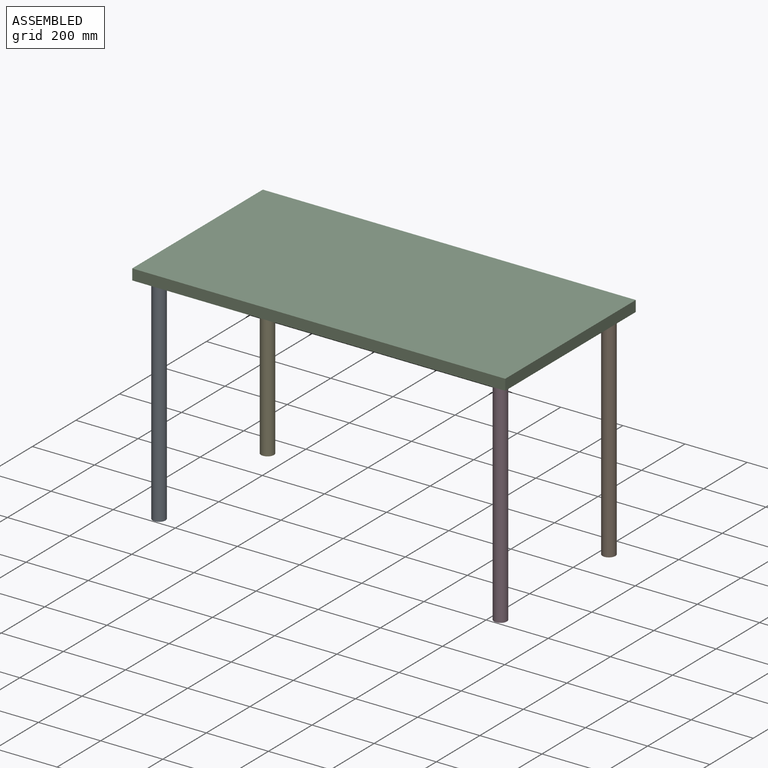
[diagram: assembled view]
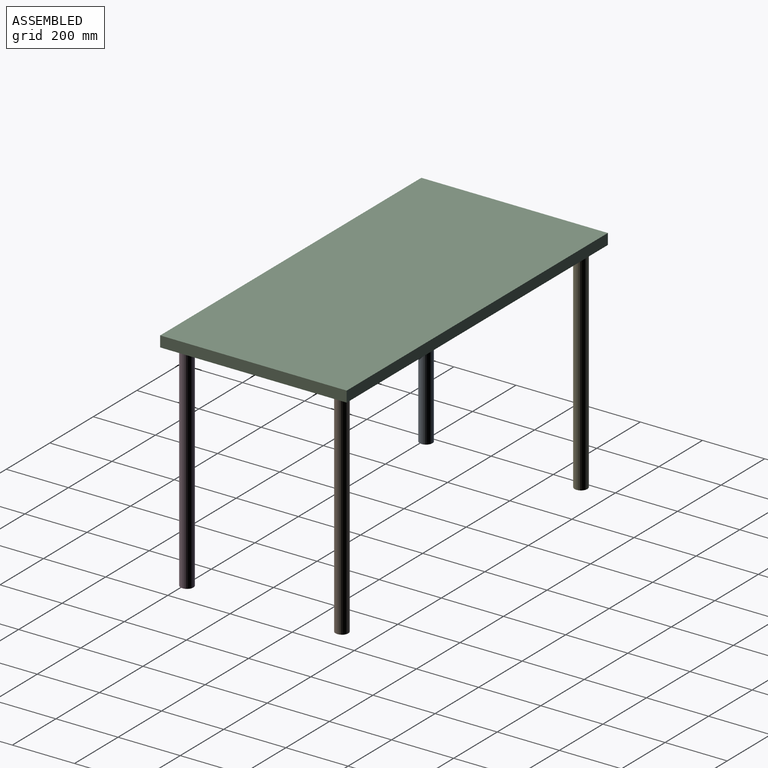
[diagram: assembled view, second angle]
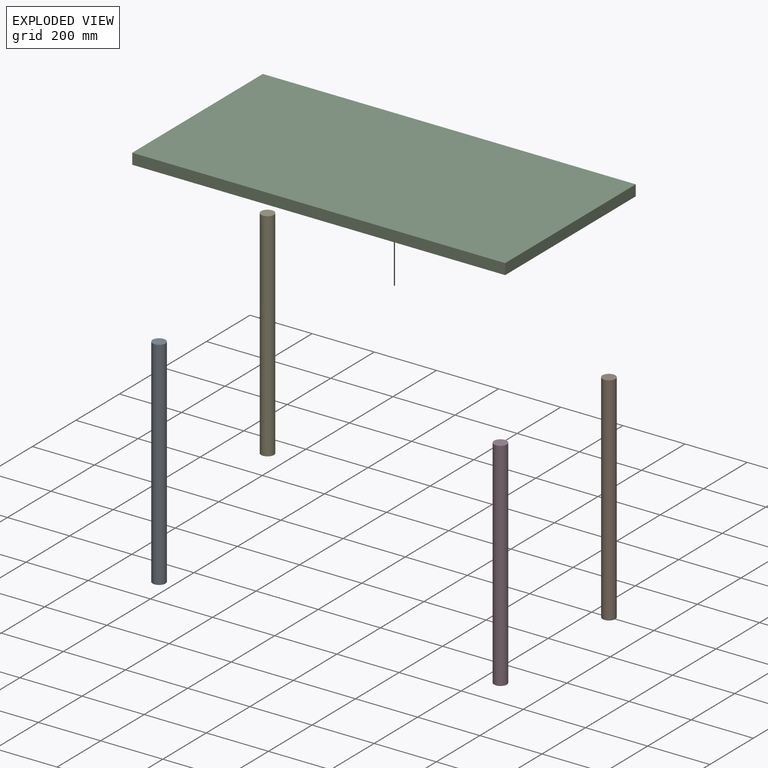
[diagram: exploded view]
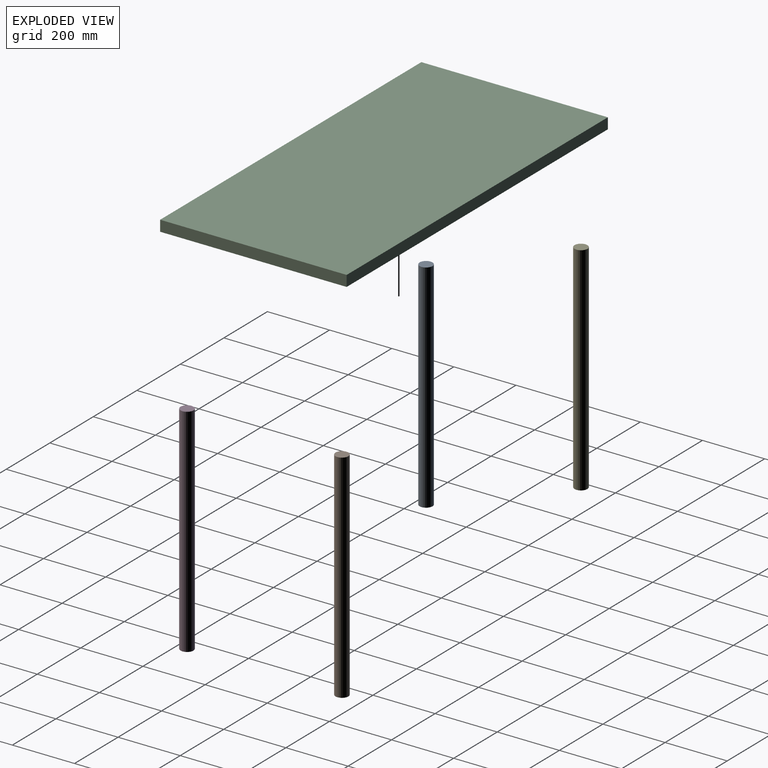
[diagram: exploded view, second angle]
ASSEMBLY  parts=5 mates=8
PART A: 3 faces, bbox 41.3x41.3x698.5 mm
  f0: cylinder r=20.64mm len=698.5mm, axis (0,0,-1), area 90574mm2, adj f1,f2
  f1: plane 41.28x41.28mm, normal (0,0,1), area 1338mm2, adj f0
  f2: plane 41.28x41.28mm, normal (0,0,-1), area 1338mm2, adj f0
PART B: same geometry as A
PART C: 16 faces, bbox 1200.2x600.1x34.9 mm
  f0: plane 1200.15x34.93mm, normal (0,1,0), area 41915.2mm2, adj f1,f3,f4,f5
  f1: plane 600.08x34.93mm, normal (-1,0,0), area 20957.6mm2, adj f0,f2,f4,f5
  f2: plane 1200.15x34.93mm, normal (0,-1,0), area 41915.2mm2, adj f1,f3,f4,f5
  f3: plane 600.08x34.93mm, normal (1,0,0), area 20957.6mm2, adj f0,f2,f4,f5
  f4: plane 1200.15x600.08mm, normal (0,0,1), area 720180mm2, adj f0,f1,f2,f3
  f5: plane 1200.15x600.08mm, normal (0,0,-1), area 719546.6mm2, adj f0,f1,f2,f3,f6,f8,f10,f12
  f6: cylinder r=6.35mm len=25.4mm, axis (0,0,-1), area 1013.4mm2, adj f5,f7
  f7: plane 12.7x12.7mm, normal (0,0,-1), area 126.7mm2, adj f6
  f8: cylinder r=6.35mm len=25.4mm, axis (0,0,-1), area 1013.4mm2, adj f5,f9
  f9: plane 12.7x12.7mm, normal (0,0,-1), area 126.7mm2, adj f8
  f10: cylinder r=6.35mm len=25.4mm, axis (0,0,-1), area 1013.4mm2, adj f5,f11
  f11: plane 12.7x12.7mm, normal (0,0,-1), area 126.7mm2, adj f10
  f12: cylinder r=6.35mm len=25.4mm, axis (0,0,-1), area 1013.4mm2, adj f5,f13
  f13: plane 12.7x12.7mm, normal (0,0,-1), area 126.7mm2, adj f12
  f14: cylinder r=6.35mm len=25.4mm, axis (0,0,-1), area 1013.4mm2, adj f5,f15
  f15: plane 12.7x12.7mm, normal (0,0,-1), area 126.7mm2, adj f14
PART D: same geometry as A
PART E: same geometry as A
PLACE A t=(-14.58,60.72,-117.63)mm
PLACE B rot(axis=(1,0,0),180deg) t=(1083.97,559.19,580.87)mm
PLACE C t=(534.7,309.96,580.87)mm
PLACE D rot(axis=(1,0,0),180deg) t=(1083.97,60.72,580.87)mm
PLACE E rot(axis=(1,0,0),180deg) t=(-14.58,559.19,580.87)mm
MATE slider A.f0 <-> C.f6  axis (0,0,-1) through (-14.58,60.72,580.87)mm
MATE planar A.f0 <-> C.f5  axis (0,0,1) through (-14.58,60.72,580.87)mm
MATE slider E.f0 <-> C.f12  axis (0,0,1) through (-14.58,559.19,580.87)mm
MATE planar E.f0 <-> C.f5  axis (0,0,1) through (-14.58,559.19,580.87)mm
MATE slider B.f0 <-> C.f8  axis (0,0,1) through (1083.97,559.19,231.62)mm
MATE slider D.f0 <-> C.f10  axis (0,0,1) through (1083.97,60.72,580.87)mm
MATE planar C.f5 <-> B.f0  axis (0,0,-1) through (534.7,309.91,580.87)mm
MATE planar D.f0 <-> C.f14  axis (0,0,1) through (1083.97,60.72,580.87)mm
